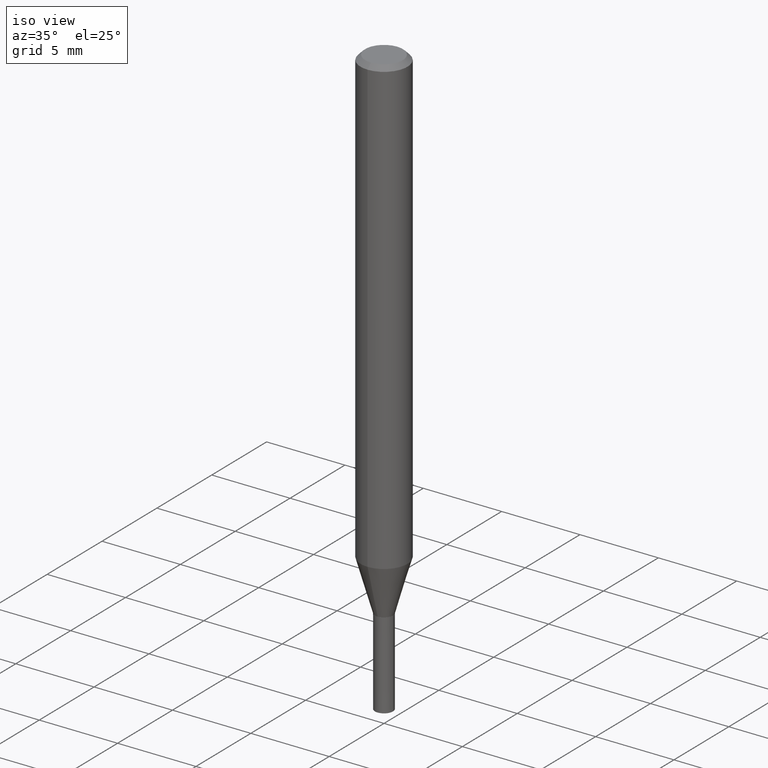
[diagram: clean part render]
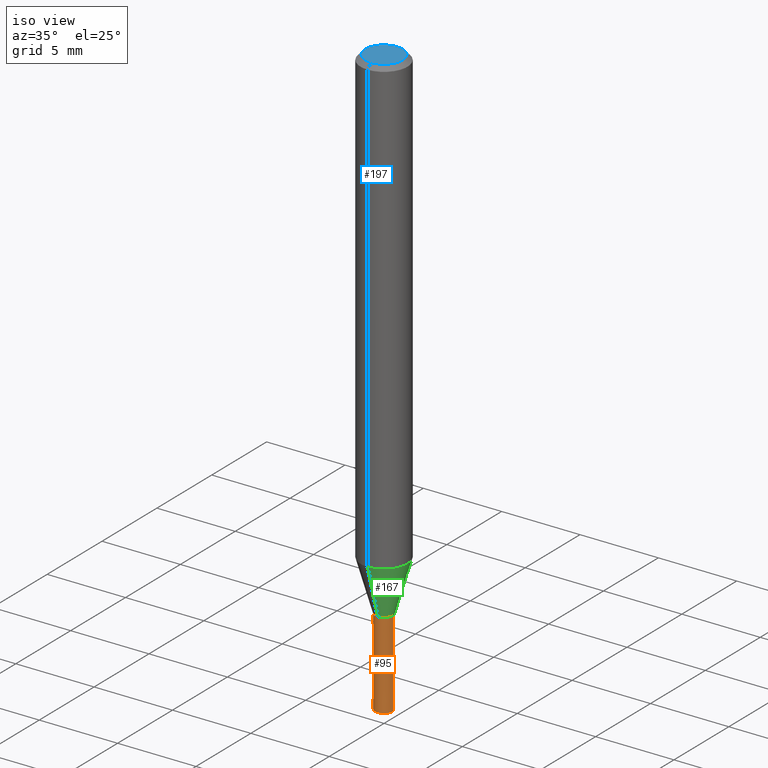
[diagram: same view with three faces highlighted in distinct colors, each labeled with its STEP entity id]
A machine part, iso view with three faces highlighted in distinct colors.
Their STEP definitions:

[orange] entity #95 — the highlighted conical surface has half-angle 0.01 deg.
#95=ADVANCED_FACE('',(#231),#232,.T.);
#105=EDGE_CURVE('',#189,#117,#242,.T.);
#117=VERTEX_POINT('',#255);
#127=VERTEX_POINT('',#266);
#135=EDGE_CURVE('',#189,#157,#275,.T.);
#145=EDGE_CURVE('',#127,#157,#286,.T.);
#157=VERTEX_POINT('',#299);
#175=EDGE_CURVE('',#117,#127,#320,.T.);
#189=VERTEX_POINT('',#334);
#231=FACE_OUTER_BOUND('',#373,.T.);
#232=CONICAL_SURFACE('',#374,0.5755,0.000180770594522013);
#242=LINE('',#387,#388);
#255=CARTESIAN_POINT('',(0.576,7.05373259801689E-017,-32.2));
#266=CARTESIAN_POINT('',(-0.576,0.0,-32.2));
#275=CIRCLE('',#428,0.575);
#286=LINE('',#443,#444);
#299=CARTESIAN_POINT('',(-0.575,0.0,-37.7318731));
#320=CIRCLE('',#490,0.576);
#334=CARTESIAN_POINT('',(0.575,7.04148653447867E-017,-37.7318731));
#373=EDGE_LOOP('',(#542,#543,#544,#545));
#374=AXIS2_PLACEMENT_3D('',#546,#547,#548);
#387=CARTESIAN_POINT('',(0.5755,7.04760956624778E-017,-34.96593655));
#388=VECTOR('',#554,1.0);
#428=AXIS2_PLACEMENT_3D('',#591,#592,#593);
#443=CARTESIAN_POINT('',(-0.5755,-7.04760956624778E-017,-34.96593655));
#444=VECTOR('',#606,1.0);
#490=AXIS2_PLACEMENT_3D('',#652,#653,#654);
#542=ORIENTED_EDGE('',*,*,#145,.T.);
#543=ORIENTED_EDGE('',*,*,#135,.F.);
#544=ORIENTED_EDGE('',*,*,#105,.T.);
#545=ORIENTED_EDGE('',*,*,#175,.T.);
#546=CARTESIAN_POINT('',(0.0,0.0,-34.96593655));
#547=DIRECTION('',(-0.0,-0.0,1.0));
#548=DIRECTION('',(-1.0,0.0,0.0));
#554=DIRECTION('',(0.000180770593537476,2.21372817430235E-020,0.999999983660996));
#591=CARTESIAN_POINT('',(0.0,0.0,-37.7318731));
#592=DIRECTION('',(0.0,0.0,-1.0));
#593=DIRECTION('',(-1.0,0.0,0.0));
#606=DIRECTION('',(0.000180770593537476,2.21372817430235E-020,-0.999999983660996));
#652=CARTESIAN_POINT('',(0.0,0.0,-32.2));
#653=DIRECTION('',(0.0,0.0,-1.0));
#654=DIRECTION('',(-1.0,0.0,0.0));

[blue] entity #197 — the highlighted planar face has unit normal (-0, 0, 1).
#121=EDGE_CURVE('',#203,#123,#260,.T.);
#123=VERTEX_POINT('',#262);
#179=EDGE_CURVE('',#123,#203,#324,.T.);
#197=ADVANCED_FACE('',(#344),#345,.T.);
#203=VERTEX_POINT('',#352);
#260=CIRCLE('',#409,1.2);
#262=CARTESIAN_POINT('',(0.0,1.2,0.0));
#324=CIRCLE('',#496,1.2);
#344=FACE_OUTER_BOUND('',#520,.T.);
#345=PLANE('',#521);
#352=CARTESIAN_POINT('',(1.46952762458685E-016,-1.2,0.0));
#409=AXIS2_PLACEMENT_3D('',#576,#577,#578);
#496=AXIS2_PLACEMENT_3D('',#658,#659,#660);
#520=EDGE_LOOP('',(#682,#683));
#521=AXIS2_PLACEMENT_3D('',#684,#685,#686);
#576=CARTESIAN_POINT('',(0.0,0.0,0.0));
#577=DIRECTION('',(0.0,0.0,-1.0));
#578=DIRECTION('',(0.0,1.0,0.0));
#658=CARTESIAN_POINT('',(0.0,0.0,0.0));
#659=DIRECTION('',(0.0,0.0,-1.0));
#660=DIRECTION('',(0.0,1.0,0.0));
#682=ORIENTED_EDGE('',*,*,#179,.F.);
#683=ORIENTED_EDGE('',*,*,#121,.F.);
#684=CARTESIAN_POINT('',(0.0,0.6,0.0));
#685=DIRECTION('',(-0.0,0.0,1.0));
#686=DIRECTION('',(0.0,-1.0,0.0));

[green] entity #167 — the highlighted conical surface has half-angle 16.003 deg.
#129=VERTEX_POINT('',#268);
#137=EDGE_CURVE('',#143,#129,#277,.T.);
#141=EDGE_CURVE('',#129,#187,#282,.T.);
#143=VERTEX_POINT('',#284);
#161=VERTEX_POINT('',#303);
#167=ADVANCED_FACE('',(#311),#312,.T.);
#169=EDGE_CURVE('',#143,#161,#314,.T.);
#181=EDGE_CURVE('',#187,#161,#326,.T.);
#187=VERTEX_POINT('',#332);
#268=CARTESIAN_POINT('',(0.0,0.575,-32.1991339745962));
#277=LINE('',#431,#432);
#282=CIRCLE('',#438,0.575);
#284=CARTESIAN_POINT('',(0.0,1.5,-28.974));
#303=CARTESIAN_POINT('',(1.83690953073357E-016,-1.5,-28.974));
#311=FACE_OUTER_BOUND('',#475,.T.);
#312=CONICAL_SURFACE('',#476,1.0375,0.279312190951098);
#314=CIRCLE('',#479,1.5);
#326=LINE('',#499,#500);
#332=CARTESIAN_POINT('',(7.04148653447867E-017,-0.575,-32.1991339745962));
#431=CARTESIAN_POINT('',(-1.27052909209072E-016,1.0375,-30.5865669872981));
#432=VECTOR('',#594,1.0);
#438=AXIS2_PLACEMENT_3D('',#603,#604,#605);
#475=EDGE_LOOP('',(#640,#641,#642,#643));
#476=AXIS2_PLACEMENT_3D('',#644,#645,#646);
#479=AXIS2_PLACEMENT_3D('',#647,#648,#649);
#499=CARTESIAN_POINT('',(1.27052909209072E-016,-1.0375,-30.5865669872981));
#500=VECTOR('',#661,1.0);
#594=DIRECTION('',(3.3761731064943E-017,-0.275694560619926,-0.961245290882918));
#603=CARTESIAN_POINT('',(0.0,0.0,-32.1991339745962));
#604=DIRECTION('',(0.0,0.0,-1.0));
#605=DIRECTION('',(0.0,1.0,0.0));
#640=ORIENTED_EDGE('',*,*,#137,.F.);
#641=ORIENTED_EDGE('',*,*,#169,.T.);
#642=ORIENTED_EDGE('',*,*,#181,.F.);
#643=ORIENTED_EDGE('',*,*,#141,.F.);
#644=CARTESIAN_POINT('',(0.0,0.0,-30.5865669872981));
#645=DIRECTION('',(-0.0,-0.0,1.0));
#646=DIRECTION('',(0.0,1.0,0.0));
#647=CARTESIAN_POINT('',(0.0,0.0,-28.974));
#648=DIRECTION('',(0.0,0.0,-1.0));
#649=DIRECTION('',(0.0,1.0,0.0));
#661=DIRECTION('',(3.3761731064943E-017,-0.275694560619926,0.961245290882918));